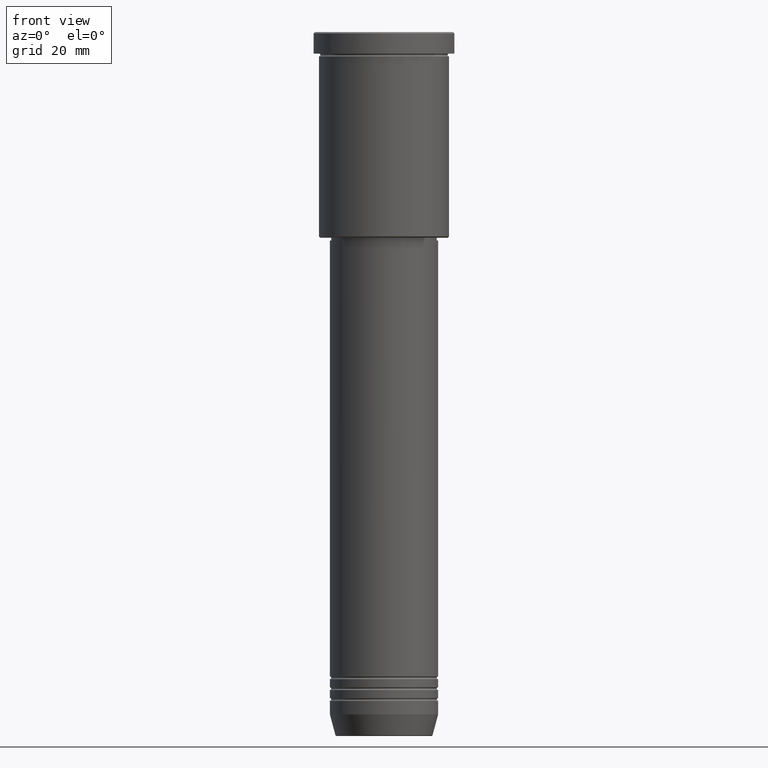
[diagram: clean part render]
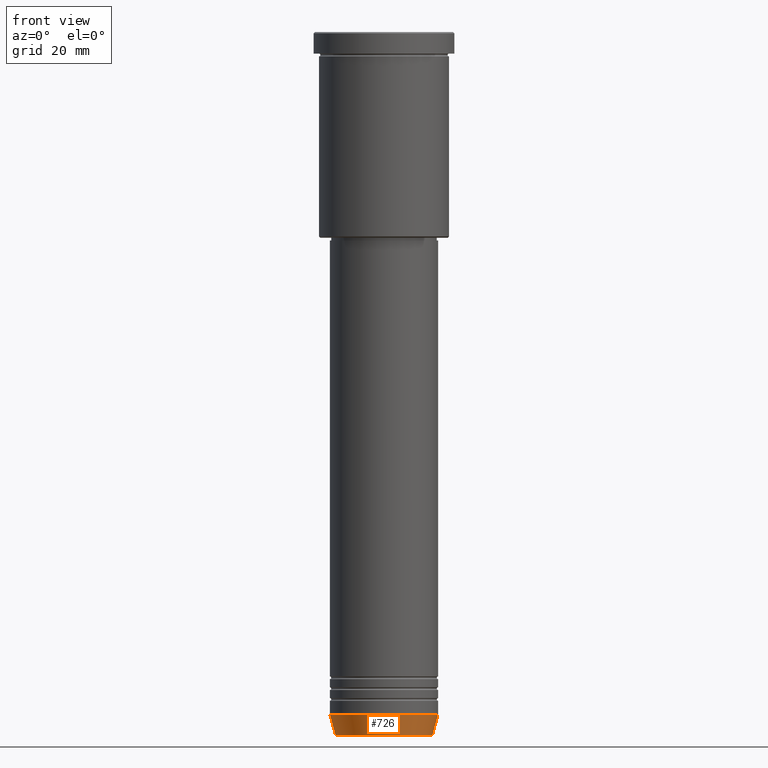
[diagram: same view with one face highlighted and labeled with its STEP entity id]
A machine part, front view. The second image highlights one B-rep face of the part: STEP entity #726.
In plain terms, the highlighted conical surface has half-angle 15 deg.
Its self-contained STEP definition (entity closure, byte-faithful):
#30 = CIRCLE ( 'NONE', #168, 17.95570587970608045 ) ;
#36 = CARTESIAN_POINT ( 'NONE',  ( 0.000000000000000000, 0.000000000000000000, -252.0000000000000000 ) ) ;
#55 = LINE ( 'NONE', #780, #205 ) ;
#66 = EDGE_CURVE ( 'NONE', #454, #250, #55, .T. ) ;
#82 = EDGE_CURVE ( 'NONE', #160, #454, #30, .T. ) ;
#93 = DIRECTION ( 'NONE',  ( -0.2588190451025212391, 3.169619151431771721E-17, 0.9659258262890680902 ) ) ;
#114 = DIRECTION ( 'NONE',  ( 1.000000000000000000, 0.000000000000000000, 0.000000000000000000 ) ) ;
#145 = CARTESIAN_POINT ( 'NONE',  ( -20.00000000000000355, 2.449293598294706907E-15, -252.0000000000000000 ) ) ;
#160 = VERTEX_POINT ( 'NONE', #740 ) ;
#161 = CARTESIAN_POINT ( 'NONE',  ( 0.000000000000000000, 0.000000000000000000, -252.0000000000000000 ) ) ;
#168 = AXIS2_PLACEMENT_3D ( 'NONE', #177, #872, #812 ) ;
#177 = CARTESIAN_POINT ( 'NONE',  ( 0.000000000000000000, 0.000000000000000000, -259.6294095225512706 ) ) ;
#205 = VECTOR ( 'NONE', #1068, 1000.000000000000114 ) ;
#211 = CARTESIAN_POINT ( 'NONE',  ( -20.00000000000000355, 2.449293598294706907E-15, -252.0000000000000000 ) ) ;
#244 = CIRCLE ( 'NONE', #387, 20.00000000000000355 ) ;
#250 = VERTEX_POINT ( 'NONE', #937 ) ;
#282 = VECTOR ( 'NONE', #93, 1000.000000000000114 ) ;
#311 = ORIENTED_EDGE ( 'NONE', *, *, #66, .T. ) ;
#382 = DIRECTION ( 'NONE',  ( 1.000000000000000000, 0.000000000000000000, 0.000000000000000000 ) ) ;
#387 = AXIS2_PLACEMENT_3D ( 'NONE', #36, #664, #382 ) ;
#391 = ORIENTED_EDGE ( 'NONE', *, *, #1170, .F. ) ;
#424 = EDGE_LOOP ( 'NONE', ( #919, #614, #311, #391 ) ) ;
#448 = AXIS2_PLACEMENT_3D ( 'NONE', #161, #884, #114 ) ;
#454 = VERTEX_POINT ( 'NONE', #1004 ) ;
#521 = EDGE_CURVE ( 'NONE', #160, #936, #833, .T. ) ;
#614 = ORIENTED_EDGE ( 'NONE', *, *, #82, .T. ) ;
#664 = DIRECTION ( 'NONE',  ( -0.000000000000000000, -0.000000000000000000, 1.000000000000000000 ) ) ;
#726 = ADVANCED_FACE ( 'NONE', ( #981 ), #1181, .T. ) ;
#740 = CARTESIAN_POINT ( 'NONE',  ( -17.95570587970608045, 2.324116685748021371E-15, -259.6294095225512706 ) ) ;
#780 = CARTESIAN_POINT ( 'NONE',  ( 20.00000000000000355, 0.000000000000000000, -252.0000000000000000 ) ) ;
#812 = DIRECTION ( 'NONE',  ( 1.000000000000000000, 0.000000000000000000, 0.000000000000000000 ) ) ;
#833 = LINE ( 'NONE', #211, #282 ) ;
#872 = DIRECTION ( 'NONE',  ( -0.000000000000000000, -0.000000000000000000, 1.000000000000000000 ) ) ;
#884 = DIRECTION ( 'NONE',  ( -0.000000000000000000, -0.000000000000000000, 1.000000000000000000 ) ) ;
#919 = ORIENTED_EDGE ( 'NONE', *, *, #521, .F. ) ;
#936 = VERTEX_POINT ( 'NONE', #145 ) ;
#937 = CARTESIAN_POINT ( 'NONE',  ( 20.00000000000000355, 0.000000000000000000, -252.0000000000000000 ) ) ;
#981 = FACE_OUTER_BOUND ( 'NONE', #424, .T. ) ;
#1004 = CARTESIAN_POINT ( 'NONE',  ( 17.95570587970608045, 0.000000000000000000, -259.6294095225512706 ) ) ;
#1068 = DIRECTION ( 'NONE',  ( 0.2588190451025212391, 0.000000000000000000, 0.9659258262890680902 ) ) ;
#1170 = EDGE_CURVE ( 'NONE', #936, #250, #244, .T. ) ;
#1181 = CONICAL_SURFACE ( 'NONE', #448, 20.00000000000000355, 0.2617993877991499629 ) ;